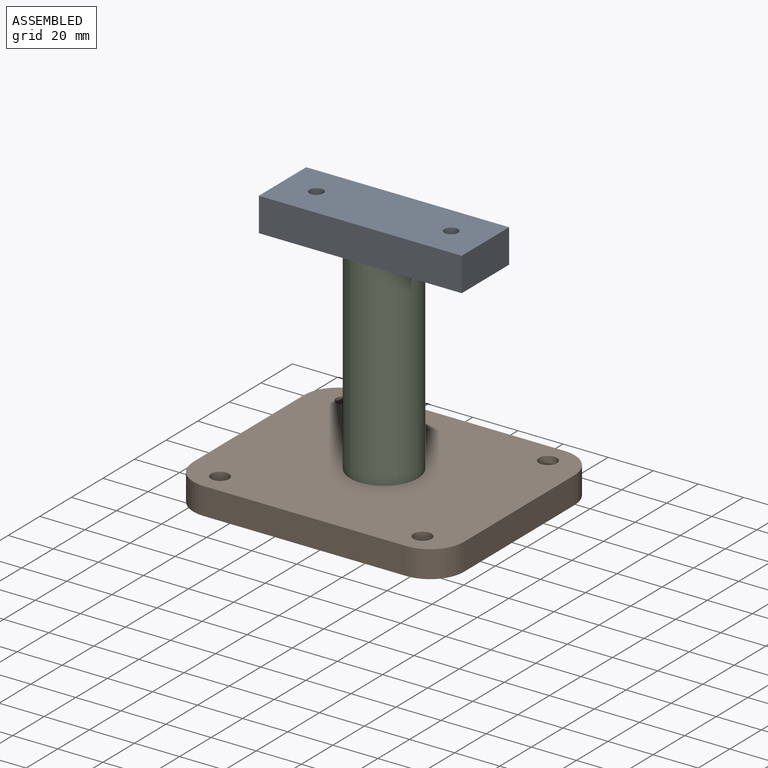
[diagram: assembled view]
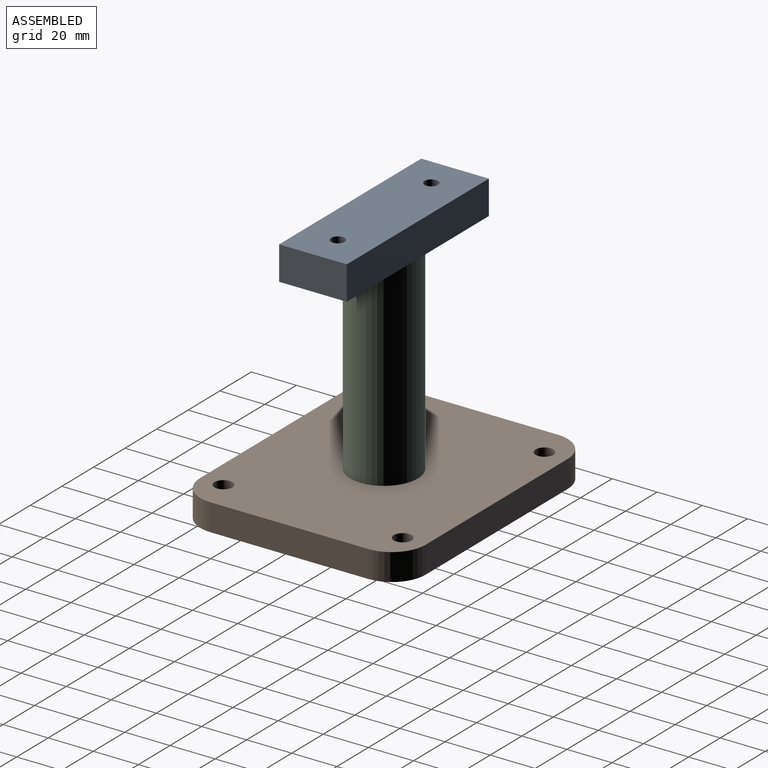
[diagram: assembled view, second angle]
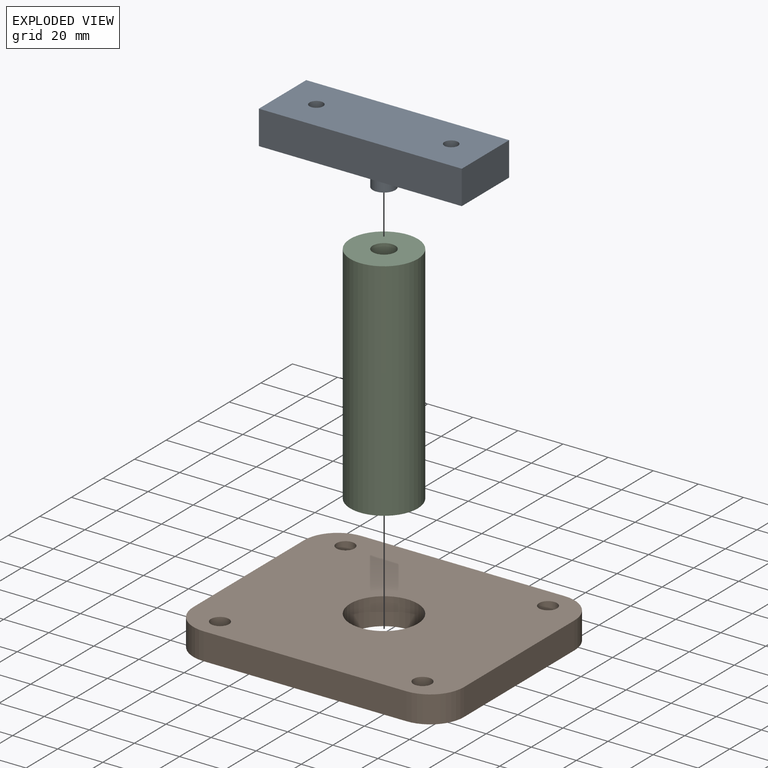
[diagram: exploded view]
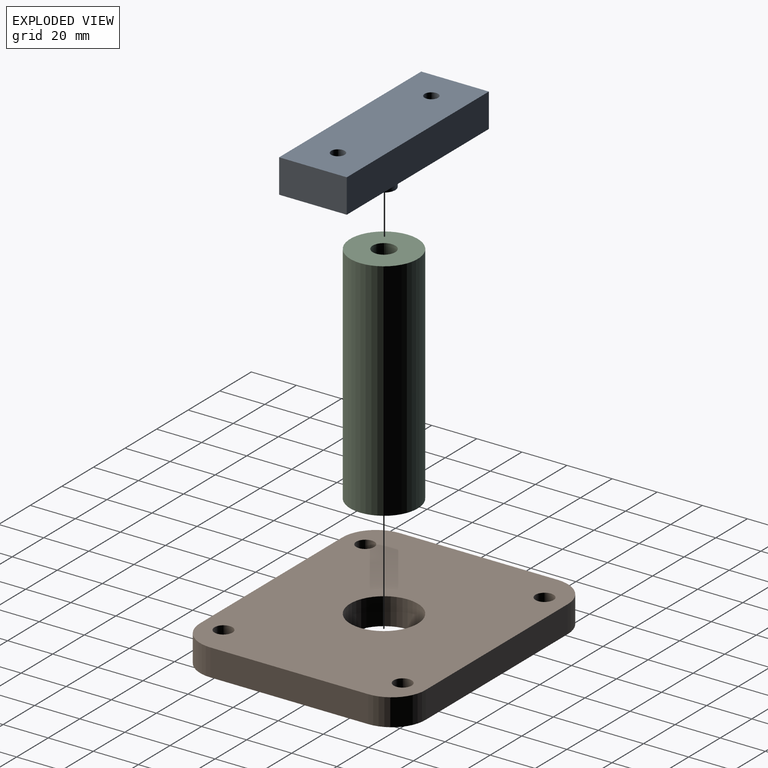
[diagram: exploded view, second angle]
ASSEMBLY  parts=3 mates=2
PART A: 12 faces, bbox 90x30x25 mm
  f0: plane 30x15mm, normal (-1,0,0), area 450mm2, adj f1,f3,f4,f5
  f1: plane 90x15mm, normal (0,-1,0), area 1350mm2, adj f0,f2,f4,f5
  f2: plane 30x15mm, normal (1,0,0), area 450mm2, adj f1,f3,f4,f5
  f3: plane 90x15mm, normal (0,1,0), area 1350mm2, adj f0,f2,f4,f5
  f4: plane 90x30mm, normal (0,0,1), area 2643.5mm2, adj f0,f1,f2,f3,f9,f11
  f5: plane 90x30mm, normal (0,0,-1), area 2621.5mm2, adj f0,f1,f2,f3,f6
  f6: cylinder r=5mm len=10mm, axis (0,0,1), area 314.2mm2, adj f5,f7
  f7: plane 10x10mm, normal (0,0,-1), area 78.5mm2, adj f6
  f8: cone r=0mm half-angle=59deg, axis (0,0,1), area 33mm2, adj f9
  f9: cylinder r=3mm len=10mm, axis (0,0,1), area 188.5mm2, adj f4,f8
  f10: cone r=0mm half-angle=59deg, axis (0,0,1), area 33mm2, adj f11
  f11: cylinder r=3mm len=10mm, axis (0,0,1), area 188.5mm2, adj f4,f10
PART B: 15 faces, bbox 120x100x12 mm
  f0: plane 70x12mm, normal (-1,0,0), area 840mm2, adj f9,f10,f12,f14
  f1: plane 90x12mm, normal (0,-1,0), area 1080mm2, adj f9,f10,f13,f14
  f2: plane 70x12mm, normal (1,0,0), area 840mm2, adj f9,f10,f11,f13
  f3: cylinder r=4mm len=12mm, axis (0,0,-1), area 301.6mm2, adj f9,f10
  f4: cylinder r=4mm len=12mm, axis (0,0,-1), area 301.6mm2, adj f9,f10
  f5: cylinder r=15mm len=30mm, axis (0,0,-1), area 1131mm2, adj f9,f10
  f6: cylinder r=4mm len=12mm, axis (0,0,-1), area 301.6mm2, adj f9,f10
  f7: cylinder r=4mm len=12mm, axis (0,0,-1), area 301.6mm2, adj f9,f10
  f8: plane 90x12mm, normal (0,1,0), area 1080mm2, adj f9,f10,f11,f12
  f9: plane 120x100mm, normal (0,0,1), area 10898.9mm2, adj f0,f1,f2,f3,f4,f5,f6,f7
  f10: plane 120x100mm, normal (0,0,-1), area 10898.9mm2, adj f0,f1,f2,f3,f4,f5,f6,f7
  f11: cylinder r=15mm len=15mm, axis (0,0,-1), area 282.7mm2, adj f2,f8,f9,f10
  f12: cylinder r=15mm len=15mm, axis (0,0,1), area 282.7mm2, adj f0,f8,f9,f10
  f13: cylinder r=15mm len=15mm, axis (0,0,1), area 282.7mm2, adj f1,f2,f9,f10
  f14: cylinder r=15mm len=15mm, axis (0,0,-1), area 282.7mm2, adj f0,f1,f9,f10
PART C: 5 faces, bbox 30x30x100 mm
  f0: cylinder r=15mm len=100mm, axis (0,0,-1), area 9424.8mm2, adj f1,f2
  f1: plane 30x30mm, normal (0,0,1), area 628.3mm2, adj f0,f4
  f2: plane 30x30mm, normal (0,0,-1), area 706.9mm2, adj f0
  f3: cone r=0mm half-angle=59deg, axis (0,0,1), area 91.6mm2, adj f4
  f4: cylinder r=5mm len=20mm, axis (0,0,1), area 628.3mm2, adj f1,f3
PLACE A rot(axis=(0.05,-1,-0.01),0deg) t=(21.79,-59.82,126.17)mm
PLACE B rot(axis=(0.05,-1,0),0deg) t=(31.79,-83.95,26.17)mm
PLACE C rot(axis=(0.05,-1,-0.01),0deg) t=(28.74,-62.96,26.17)mm
MATE revolute C.f0 <-> B.f5  axis (0,0,-1) through (28.74,-62.96,26.17)mm
MATE fastened A.f6 <-> C.f3  axis (0,0,-1) through (28.74,-62.96,116.17)mm
